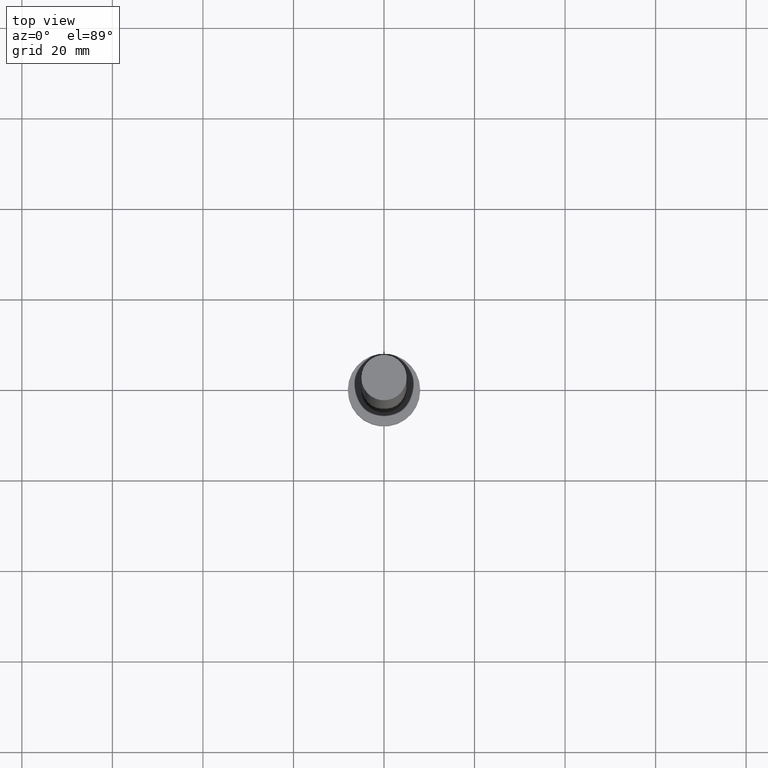
[diagram: clean part render]
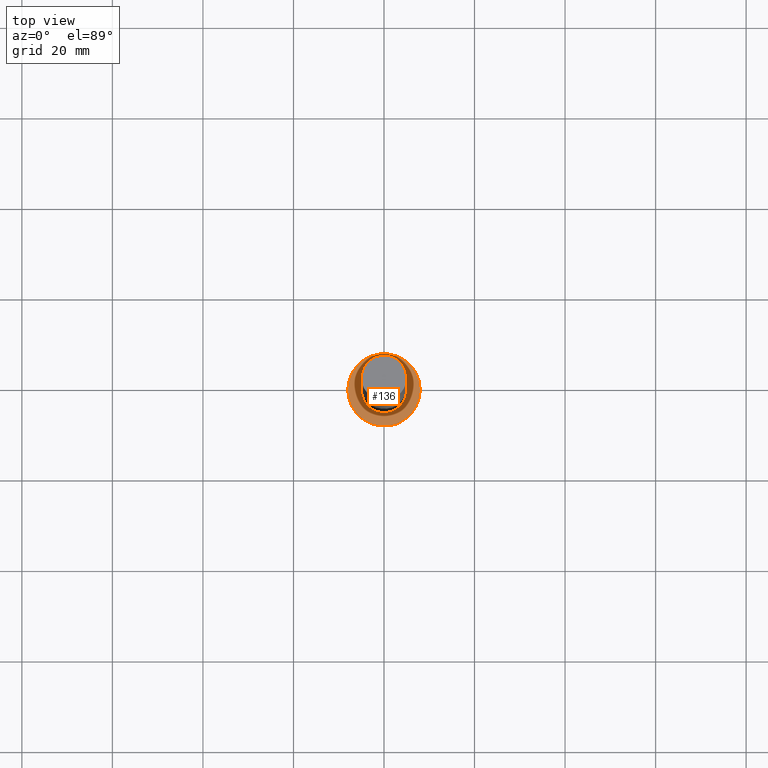
[diagram: same view with one face highlighted and labeled with its STEP entity id]
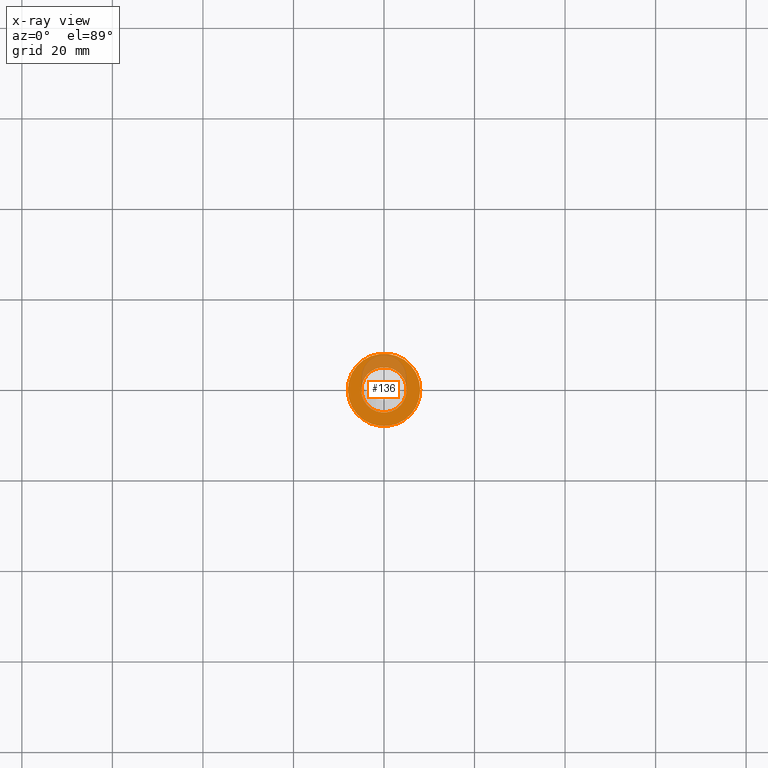
[diagram: x-ray of the same camera — body ghosted, the highlighted face saturated]
A machine part, top view. The second image highlights one B-rep face of the part: STEP entity #136.
The next image is the same camera in x-ray: the body ghosted, the highlighted face saturated — about 22% of this face is hidden behind the body in this view.
In plain terms, the highlighted planar face has unit normal (0, 0, 1).
Its self-contained STEP definition (entity closure, byte-faithful):
#8 = CARTESIAN_POINT ( 'NONE',  ( 8.000000000000000000, 9.797174393178825657E-16, 5.000000000000000000 ) ) ;
#13 = CIRCLE ( 'NONE', #148, 8.000000000000000000 ) ;
#16 = AXIS2_PLACEMENT_3D ( 'NONE', #57, #129, #234 ) ;
#25 = AXIS2_PLACEMENT_3D ( 'NONE', #97, #152, #146 ) ;
#26 = AXIS2_PLACEMENT_3D ( 'NONE', #168, #114, #43 ) ;
#42 = EDGE_CURVE ( 'NONE', #199, #90, #13, .T. ) ;
#43 = DIRECTION ( 'NONE',  ( 1.000000000000000000, 0.000000000000000000, -0.000000000000000000 ) ) ;
#57 = CARTESIAN_POINT ( 'NONE',  ( 0.000000000000000000, 0.000000000000000000, 5.000000000000000000 ) ) ;
#58 = CARTESIAN_POINT ( 'NONE',  ( 5.000000000000000000, 6.123233995736766282E-16, 5.000000000000000000 ) ) ;
#62 = FACE_OUTER_BOUND ( 'NONE', #226, .T. ) ;
#69 = ORIENTED_EDGE ( 'NONE', *, *, #42, .T. ) ;
#84 = EDGE_LOOP ( 'NONE', ( #111, #249 ) ) ;
#90 = VERTEX_POINT ( 'NONE', #106 ) ;
#97 = CARTESIAN_POINT ( 'NONE',  ( 0.000000000000000000, 0.000000000000000000, 5.000000000000000000 ) ) ;
#106 = CARTESIAN_POINT ( 'NONE',  ( -8.000000000000000000, 0.000000000000000000, 5.000000000000000000 ) ) ;
#111 = ORIENTED_EDGE ( 'NONE', *, *, #130, .F. ) ;
#114 = DIRECTION ( 'NONE',  ( 0.000000000000000000, 0.000000000000000000, 1.000000000000000000 ) ) ;
#115 = DIRECTION ( 'NONE',  ( 1.000000000000000000, 0.000000000000000000, 0.000000000000000000 ) ) ;
#116 = CARTESIAN_POINT ( 'NONE',  ( 0.000000000000000000, 0.000000000000000000, 5.000000000000000000 ) ) ;
#126 = AXIS2_PLACEMENT_3D ( 'NONE', #116, #184, #115 ) ;
#129 = DIRECTION ( 'NONE',  ( 0.000000000000000000, 0.000000000000000000, 1.000000000000000000 ) ) ;
#130 = EDGE_CURVE ( 'NONE', #201, #243, #255, .T. ) ;
#131 = FACE_BOUND ( 'NONE', #84, .T. ) ;
#133 = PLANE ( 'NONE',  #26 ) ;
#136 = ADVANCED_FACE ( 'NONE', ( #131, #62 ), #133, .T. ) ;
#139 = DIRECTION ( 'NONE',  ( 1.000000000000000000, 0.000000000000000000, 0.000000000000000000 ) ) ;
#142 = DIRECTION ( 'NONE',  ( 0.000000000000000000, 0.000000000000000000, 1.000000000000000000 ) ) ;
#146 = DIRECTION ( 'NONE',  ( 1.000000000000000000, 0.000000000000000000, 0.000000000000000000 ) ) ;
#148 = AXIS2_PLACEMENT_3D ( 'NONE', #248, #142, #139 ) ;
#151 = CARTESIAN_POINT ( 'NONE',  ( -5.000000000000000000, 0.000000000000000000, 5.000000000000000000 ) ) ;
#152 = DIRECTION ( 'NONE',  ( 0.000000000000000000, 0.000000000000000000, 1.000000000000000000 ) ) ;
#165 = ORIENTED_EDGE ( 'NONE', *, *, #224, .T. ) ;
#168 = CARTESIAN_POINT ( 'NONE',  ( 0.000000000000000000, 0.000000000000000000, 5.000000000000000000 ) ) ;
#182 = CIRCLE ( 'NONE', #16, 8.000000000000000000 ) ;
#184 = DIRECTION ( 'NONE',  ( 0.000000000000000000, 0.000000000000000000, 1.000000000000000000 ) ) ;
#199 = VERTEX_POINT ( 'NONE', #8 ) ;
#201 = VERTEX_POINT ( 'NONE', #151 ) ;
#211 = EDGE_CURVE ( 'NONE', #243, #201, #232, .T. ) ;
#224 = EDGE_CURVE ( 'NONE', #90, #199, #182, .T. ) ;
#226 = EDGE_LOOP ( 'NONE', ( #165, #69 ) ) ;
#232 = CIRCLE ( 'NONE', #126, 5.000000000000000000 ) ;
#234 = DIRECTION ( 'NONE',  ( 1.000000000000000000, 0.000000000000000000, 0.000000000000000000 ) ) ;
#243 = VERTEX_POINT ( 'NONE', #58 ) ;
#248 = CARTESIAN_POINT ( 'NONE',  ( 0.000000000000000000, 0.000000000000000000, 5.000000000000000000 ) ) ;
#249 = ORIENTED_EDGE ( 'NONE', *, *, #211, .F. ) ;
#255 = CIRCLE ( 'NONE', #25, 5.000000000000000000 ) ;